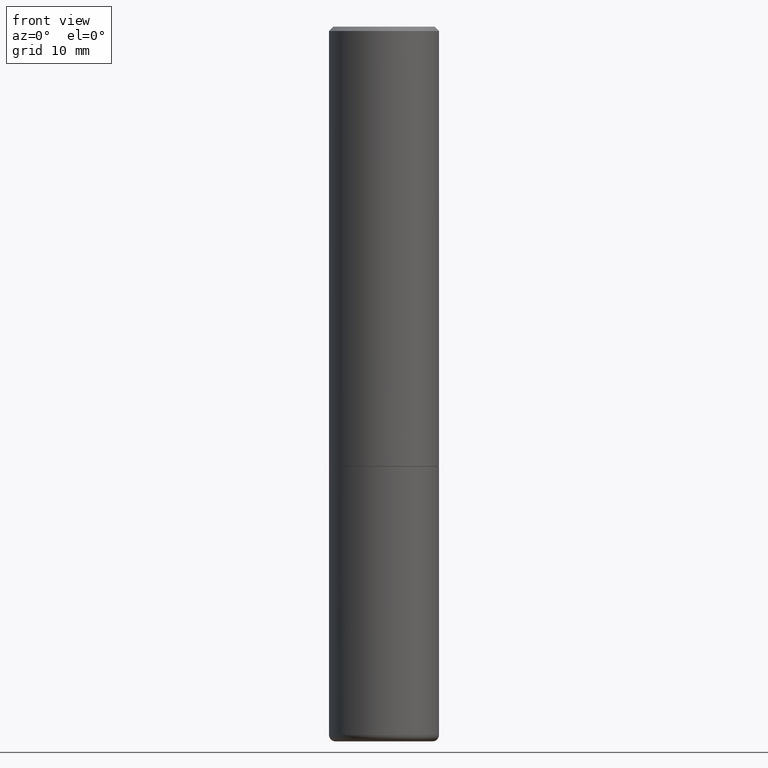
[diagram: clean part render]
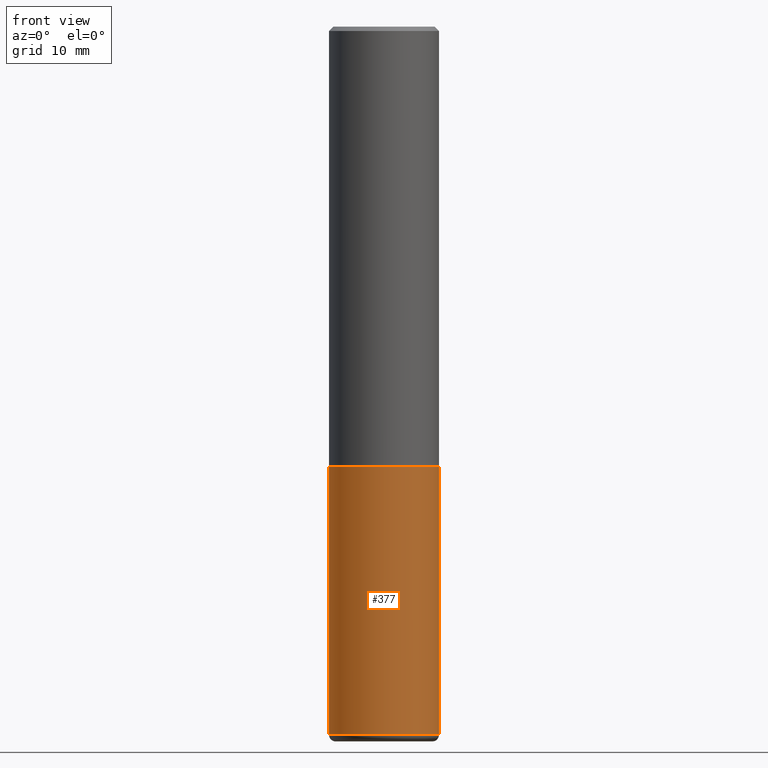
[diagram: same view with one face highlighted and labeled with its STEP entity id]
A machine part, front view. The second image highlights one B-rep face of the part: STEP entity #377.
In plain terms, the highlighted cylindrical surface (partial cylindrical patch) has radius 6.35 mm, axis along (-0, 0, 1).
Its self-contained STEP definition (entity closure, byte-faithful):
#8 = VECTOR ( 'NONE', #382, 39.37007874015748143 ) ;
#12 = ORIENTED_EDGE ( 'NONE', *, *, #254, .T. ) ;
#20 = DIRECTION ( 'NONE',  ( -2.445468806185136597E-29, 3.491481338843145583E-15, 1.000000000000000000 ) ) ;
#23 = CARTESIAN_POINT ( 'NONE',  ( 0.2499999999999996114, -8.728703347107855476E-15, -2.000000000000000000 ) ) ;
#40 = VERTEX_POINT ( 'NONE', #54 ) ;
#45 = DIRECTION ( 'NONE',  ( -2.445468806185136597E-29, 3.491481338843145583E-15, 1.000000000000000000 ) ) ;
#50 = EDGE_LOOP ( 'NONE', ( #102, #194, #12, #71 ) ) ;
#54 = CARTESIAN_POINT ( 'NONE',  ( 0.2499999999999994449, -1.298831456884381922E-14, -3.220001142308074549 ) ) ;
#65 = CARTESIAN_POINT ( 'NONE',  ( 0.2499999999999995282, -1.745740669421563325E-15, 1.219044193948981566E-29 ) ) ;
#71 = ORIENTED_EDGE ( 'NONE', *, *, #134, .F. ) ;
#88 = AXIS2_PLACEMENT_3D ( 'NONE', #394, #357, #471 ) ;
#90 = DIRECTION ( 'NONE',  ( 1.000000000000000000, -6.982962677686270655E-15, 0.000000000000000000 ) ) ;
#102 = ORIENTED_EDGE ( 'NONE', *, *, #407, .F. ) ;
#103 = CIRCLE ( 'NONE', #202, 0.2499999999999994449 ) ;
#123 = CIRCLE ( 'NONE', #88, 0.2499999999999996114 ) ;
#128 = VERTEX_POINT ( 'NONE', #23 ) ;
#134 = EDGE_CURVE ( 'NONE', #260, #128, #123, .T. ) ;
#148 = CYLINDRICAL_SURFACE ( 'NONE', #315, 0.2499999999999995282 ) ;
#153 = EDGE_CURVE ( 'NONE', #337, #40, #103, .T. ) ;
#163 = CARTESIAN_POINT ( 'NONE',  ( 7.874412349394904045E-29, -1.124257389942225570E-14, -3.220001142308074549 ) ) ;
#188 = LINE ( 'NONE', #343, #8 ) ;
#194 = ORIENTED_EDGE ( 'NONE', *, *, #153, .T. ) ;
#202 = AXIS2_PLACEMENT_3D ( 'NONE', #163, #20, #90 ) ;
#217 = LINE ( 'NONE', #65, #273 ) ;
#235 = CARTESIAN_POINT ( 'NONE',  ( -0.2499999999999994449, -7.336411449154026516E-15, -3.220001142308074549 ) ) ;
#254 = EDGE_CURVE ( 'NONE', #40, #128, #217, .T. ) ;
#260 = VERTEX_POINT ( 'NONE', #374 ) ;
#273 = VECTOR ( 'NONE', #368, 39.37007874015748143 ) ;
#277 = FACE_OUTER_BOUND ( 'NONE', #50, .T. ) ;
#315 = AXIS2_PLACEMENT_3D ( 'NONE', #316, #45, #388 ) ;
#316 = CARTESIAN_POINT ( 'NONE',  ( 0.000000000000000000, 0.000000000000000000, 0.000000000000000000 ) ) ;
#337 = VERTEX_POINT ( 'NONE', #235 ) ;
#343 = CARTESIAN_POINT ( 'NONE',  ( -0.2499999999999995282, 1.776356839400247112E-15, -1.229733772563724063E-29 ) ) ;
#357 = DIRECTION ( 'NONE',  ( -2.445468806185136597E-29, 3.491481338843145583E-15, 1.000000000000000000 ) ) ;
#368 = DIRECTION ( 'NONE',  ( -2.445468806185136877E-29, 3.491481338843145188E-15, 1.000000000000000000 ) ) ;
#374 = CARTESIAN_POINT ( 'NONE',  ( -0.2499999999999996114, -7.336411449154026516E-15, -2.000000000000000000 ) ) ;
#377 = ADVANCED_FACE ( 'NONE', ( #277 ), #148, .T. ) ;
#382 = DIRECTION ( 'NONE',  ( -2.445468806185136877E-29, 3.491481338843145188E-15, 1.000000000000000000 ) ) ;
#388 = DIRECTION ( 'NONE',  ( 1.000000000000000000, -6.982962677686266711E-15, 4.876176775795935232E-29 ) ) ;
#394 = CARTESIAN_POINT ( 'NONE',  ( 4.890937612370273194E-29, -6.982962677686291165E-15, -2.000000000000000000 ) ) ;
#407 = EDGE_CURVE ( 'NONE', #337, #260, #188, .T. ) ;
#471 = DIRECTION ( 'NONE',  ( 1.000000000000000000, -6.982962677686265922E-15, 0.000000000000000000 ) ) ;